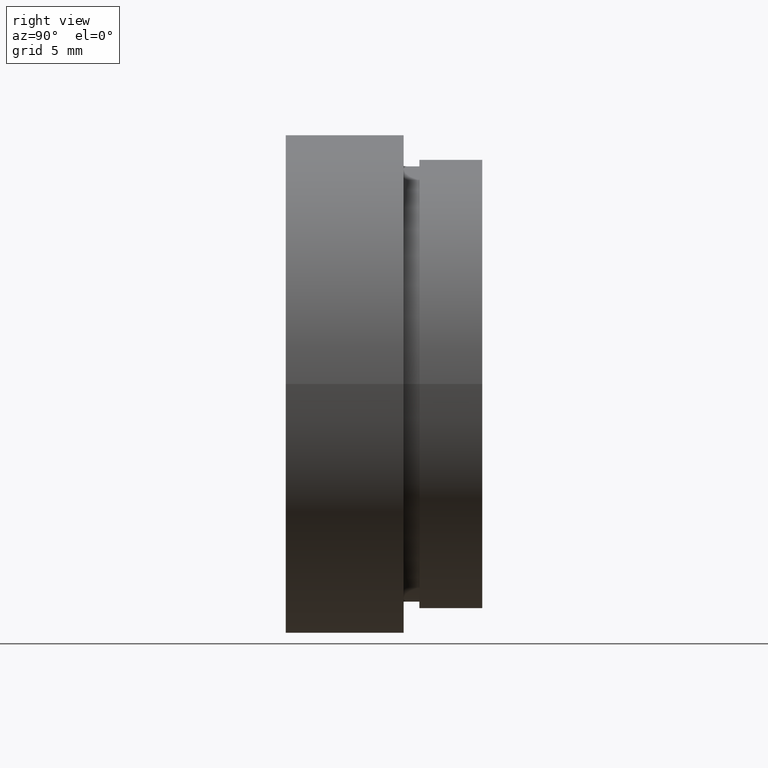
[diagram: clean part render]
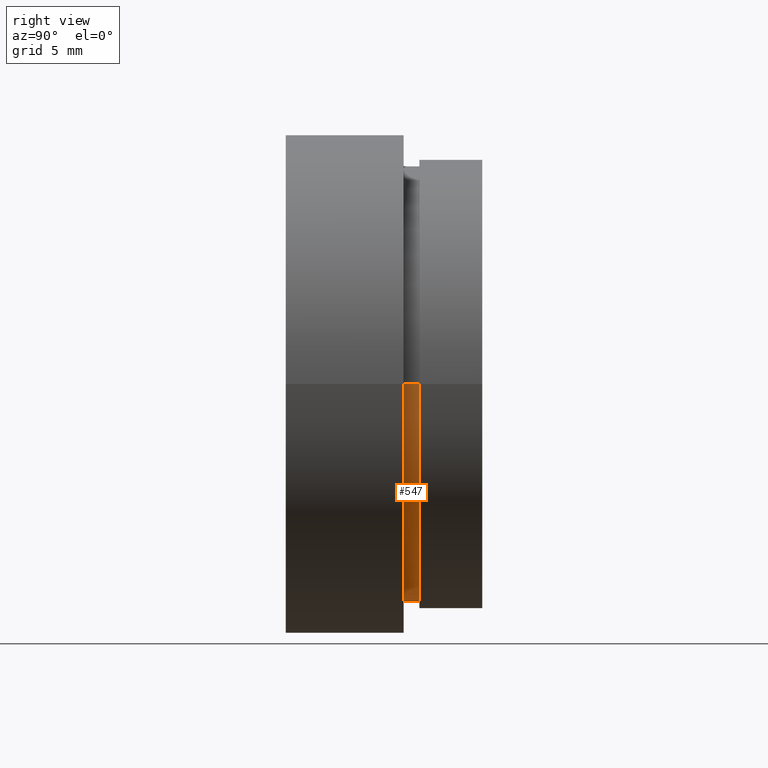
[diagram: same view with one face highlighted and labeled with its STEP entity id]
A machine part, right view. The second image highlights one B-rep face of the part: STEP entity #547.
In plain terms, the highlighted cylindrical surface (partial cylindrical patch) has radius 13.85 mm, axis along (-0, 1, -0).
Its self-contained STEP definition (entity closure, byte-faithful):
#9 = VERTEX_POINT ( 'NONE', #24 ) ;
#16 = VERTEX_POINT ( 'NONE', #366 ) ;
#22 = AXIS2_PLACEMENT_3D ( 'NONE', #434, #374, #54 ) ;
#24 = CARTESIAN_POINT ( 'NONE',  ( -13.84999999999999800, 7.499999999999996400, 0.0000000000000000000 ) ) ;
#36 = ORIENTED_EDGE ( 'NONE', *, *, #444, .T. ) ;
#39 = LINE ( 'NONE', #462, #322 ) ;
#54 = DIRECTION ( 'NONE',  ( -1.000000000000000000, -1.252507924893001600E-016, 0.0000000000000000000 ) ) ;
#99 = ORIENTED_EDGE ( 'NONE', *, *, #118, .T. ) ;
#118 = EDGE_CURVE ( 'NONE', #16, #9, #467, .T. ) ;
#145 = ORIENTED_EDGE ( 'NONE', *, *, #471, .F. ) ;
#167 = DIRECTION ( 'NONE',  ( -1.224646799147351000E-016, 1.000000000000000000, -0.0000000000000000000 ) ) ;
#177 = CARTESIAN_POINT ( 'NONE',  ( 1.149455719078122700E-015, 7.499999999999998200, 0.0000000000000000000 ) ) ;
#197 = LINE ( 'NONE', #359, #392 ) ;
#205 = DIRECTION ( 'NONE',  ( -1.000000000000000000, 0.0000000000000000000, 0.0000000000000000000 ) ) ;
#257 = VERTEX_POINT ( 'NONE', #387 ) ;
#322 = VECTOR ( 'NONE', #466, 1000.000000000000000 ) ;
#343 = AXIS2_PLACEMENT_3D ( 'NONE', #177, #521, #424 ) ;
#359 = CARTESIAN_POINT ( 'NONE',  ( -13.85000000000000000, 16.88601823708207700, 0.0000000000000000000 ) ) ;
#366 = CARTESIAN_POINT ( 'NONE',  ( 13.85000000000000100, 7.500000000000000000, 1.696135816819084000E-015 ) ) ;
#367 = CARTESIAN_POINT ( 'NONE',  ( -13.84999999999999800, 8.499999999999996400, 0.0000000000000000000 ) ) ;
#374 = DIRECTION ( 'NONE',  ( -1.224646799147351000E-016, 1.000000000000000000, -0.0000000000000000000 ) ) ;
#383 = EDGE_LOOP ( 'NONE', ( #145, #99, #36, #491 ) ) ;
#387 = CARTESIAN_POINT ( 'NONE',  ( 13.85000000000000100, 8.500000000000000000, 1.696135816819084000E-015 ) ) ;
#392 = VECTOR ( 'NONE', #167, 1000.000000000000000 ) ;
#415 = CARTESIAN_POINT ( 'NONE',  ( 0.0000000000000000000, 16.88601823708207700, 0.0000000000000000000 ) ) ;
#424 = DIRECTION ( 'NONE',  ( -1.000000000000000000, -1.252507924893001600E-016, 0.0000000000000000000 ) ) ;
#434 = CARTESIAN_POINT ( 'NONE',  ( 1.026991039163387700E-015, 8.499999999999998200, 0.0000000000000000000 ) ) ;
#438 = FACE_OUTER_BOUND ( 'NONE', #383, .T. ) ;
#444 = EDGE_CURVE ( 'NONE', #9, #469, #197, .T. ) ;
#447 = CIRCLE ( 'NONE', #22, 13.85000000000000000 ) ;
#462 = CARTESIAN_POINT ( 'NONE',  ( 13.85000000000000000, 16.88601823708207700, 1.696135816819084000E-015 ) ) ;
#464 = DIRECTION ( 'NONE',  ( -1.224646799147351000E-016, 1.000000000000000000, -0.0000000000000000000 ) ) ;
#466 = DIRECTION ( 'NONE',  ( -1.224646799147351000E-016, 1.000000000000000000, -0.0000000000000000000 ) ) ;
#467 = CIRCLE ( 'NONE', #343, 13.85000000000000000 ) ;
#469 = VERTEX_POINT ( 'NONE', #367 ) ;
#471 = EDGE_CURVE ( 'NONE', #16, #257, #39, .T. ) ;
#491 = ORIENTED_EDGE ( 'NONE', *, *, #574, .F. ) ;
#521 = DIRECTION ( 'NONE',  ( -1.224646799147351000E-016, 1.000000000000000000, -0.0000000000000000000 ) ) ;
#535 = CYLINDRICAL_SURFACE ( 'NONE', #536, 13.85000000000000000 ) ;
#536 = AXIS2_PLACEMENT_3D ( 'NONE', #415, #464, #205 ) ;
#547 = ADVANCED_FACE ( 'NONE', ( #438 ), #535, .T. ) ;
#574 = EDGE_CURVE ( 'NONE', #257, #469, #447, .T. ) ;